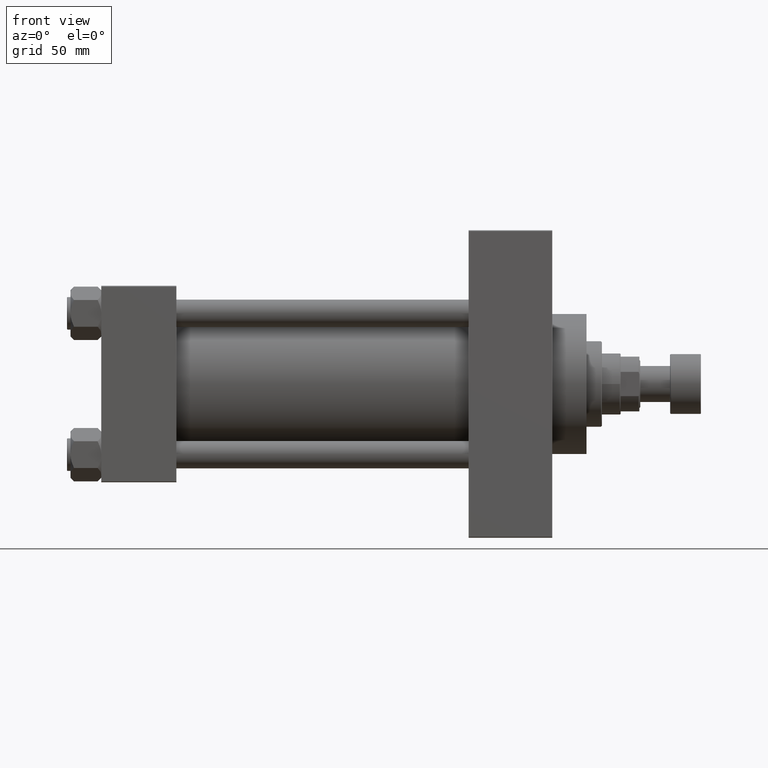
[diagram: clean part render]
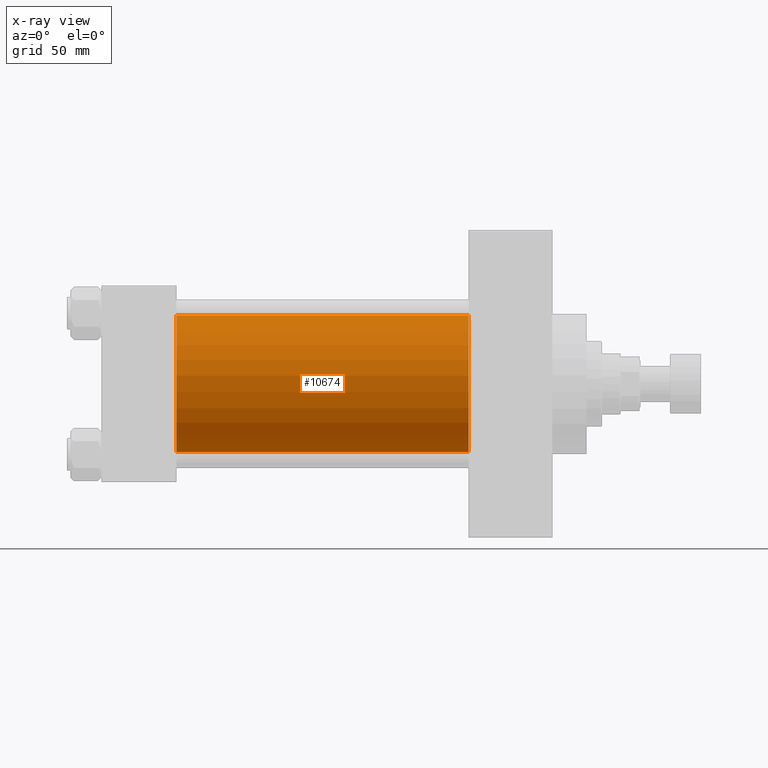
[diagram: x-ray — body ghosted, one internal face saturated and labeled with its STEP entity id]
A machine part, front view, then the same camera in x-ray: the body is ghosted and one INTERNAL B-rep face — a face not visible from any outside direction — is saturated and labeled: STEP entity #10674.
In plain terms, the highlighted cylindrical surface (partial cylindrical patch) has radius 40 mm, axis along (-1, -0, -0).
Its self-contained STEP definition (entity closure, byte-faithful):
#30 = DIRECTION ( 'NONE',  ( -1.000000000000000000, -0.000000000000000000, -0.000000000000000000 ) ) ;
#294 = VERTEX_POINT ( 'NONE', #9393 ) ;
#2144 = CARTESIAN_POINT ( 'NONE',  ( 215.0000000000000284, -2.602085213965210642E-15, 0.000000000000000000 ) ) ;
#3047 = DIRECTION ( 'NONE',  ( -1.000000000000000000, -0.000000000000000000, -0.000000000000000000 ) ) ;
#8350 = CARTESIAN_POINT ( 'NONE',  ( 44.00000000000000000, -2.602085213965210642E-15, 40.00000000000000000 ) ) ;
#9393 = CARTESIAN_POINT ( 'NONE',  ( 44.00000000000000000, 2.296501982624201990E-15, -40.00000000000000000 ) ) ;
#9707 = DIRECTION ( 'NONE',  ( 1.000000000000000000, 0.000000000000000000, 0.000000000000000000 ) ) ;
#9877 = DIRECTION ( 'NONE',  ( 0.000000000000000000, 0.000000000000000000, 1.000000000000000000 ) ) ;
#10582 = VECTOR ( 'NONE', #30, 1000.000000000000000 ) ;
#10674 = ADVANCED_FACE ( 'NONE', ( #20824 ), #13771, .F. ) ;
#10995 = LINE ( 'NONE', #33369, #10582 ) ;
#12920 = AXIS2_PLACEMENT_3D ( 'NONE', #2144, #9707, #13347 ) ;
#13347 = DIRECTION ( 'NONE',  ( 0.000000000000000000, 0.000000000000000000, -1.000000000000000000 ) ) ;
#13771 = CYLINDRICAL_SURFACE ( 'NONE', #43858, 40.00000000000000000 ) ;
#14350 = CARTESIAN_POINT ( 'NONE',  ( 215.0000000000000284, -2.602085213965210642E-15, 40.00000000000000000 ) ) ;
#14999 = EDGE_CURVE ( 'NONE', #21898, #294, #10995, .T. ) ;
#16854 = EDGE_CURVE ( 'NONE', #17804, #21898, #23025, .T. ) ;
#17804 = VERTEX_POINT ( 'NONE', #22101 ) ;
#18155 = ORIENTED_EDGE ( 'NONE', *, *, #16854, .T. ) ;
#18577 = DIRECTION ( 'NONE',  ( 1.000000000000000000, 0.000000000000000000, 0.000000000000000000 ) ) ;
#18665 = AXIS2_PLACEMENT_3D ( 'NONE', #34119, #18577, #22934 ) ;
#20824 = FACE_OUTER_BOUND ( 'NONE', #29708, .T. ) ;
#20998 = CARTESIAN_POINT ( 'NONE',  ( 215.0000000000000284, 2.296501982624201990E-15, -40.00000000000000000 ) ) ;
#21022 = ORIENTED_EDGE ( 'NONE', *, *, #14999, .T. ) ;
#21542 = CARTESIAN_POINT ( 'NONE',  ( 215.0000000000000284, -2.602085213965210642E-15, 0.000000000000000000 ) ) ;
#21898 = VERTEX_POINT ( 'NONE', #20998 ) ;
#22101 = CARTESIAN_POINT ( 'NONE',  ( 215.0000000000000284, -2.602085213965210642E-15, 40.00000000000000000 ) ) ;
#22934 = DIRECTION ( 'NONE',  ( 0.000000000000000000, 0.000000000000000000, -1.000000000000000000 ) ) ;
#23025 = CIRCLE ( 'NONE', #12920, 40.00000000000000000 ) ;
#29708 = EDGE_LOOP ( 'NONE', ( #18155, #21022, #42254, #33690 ) ) ;
#33369 = CARTESIAN_POINT ( 'NONE',  ( 215.0000000000000284, 2.296501982624201990E-15, -40.00000000000000000 ) ) ;
#33690 = ORIENTED_EDGE ( 'NONE', *, *, #37748, .F. ) ;
#34119 = CARTESIAN_POINT ( 'NONE',  ( 44.00000000000000000, -2.602085213965210642E-15, 0.000000000000000000 ) ) ;
#34972 = CIRCLE ( 'NONE', #18665, 40.00000000000000000 ) ;
#36494 = DIRECTION ( 'NONE',  ( -1.000000000000000000, -0.000000000000000000, -0.000000000000000000 ) ) ;
#37281 = VERTEX_POINT ( 'NONE', #8350 ) ;
#37283 = VECTOR ( 'NONE', #36494, 1000.000000000000000 ) ;
#37748 = EDGE_CURVE ( 'NONE', #17804, #37281, #48159, .T. ) ;
#39333 = EDGE_CURVE ( 'NONE', #37281, #294, #34972, .T. ) ;
#42254 = ORIENTED_EDGE ( 'NONE', *, *, #39333, .F. ) ;
#43858 = AXIS2_PLACEMENT_3D ( 'NONE', #21542, #3047, #9877 ) ;
#48159 = LINE ( 'NONE', #14350, #37283 ) ;